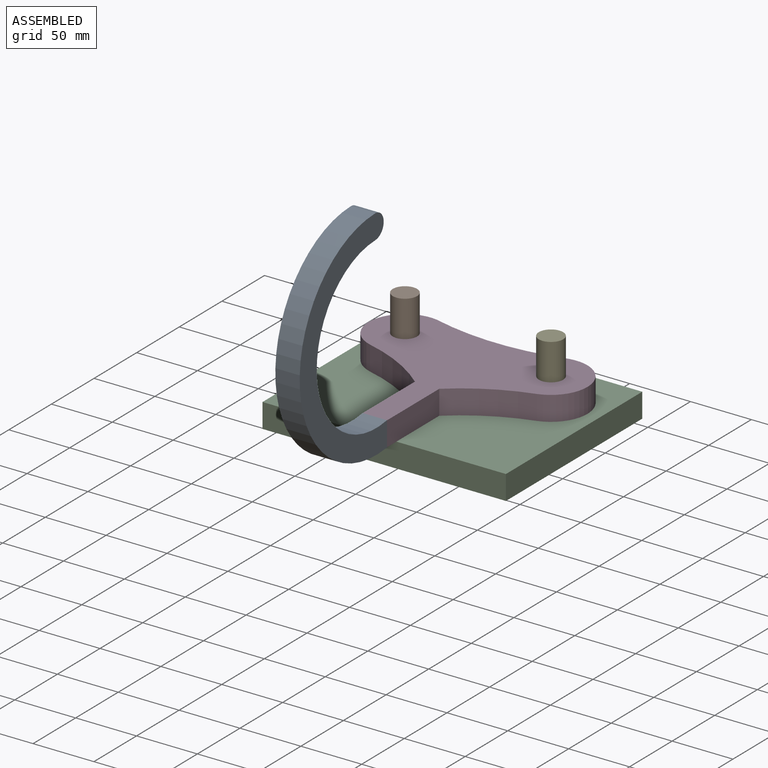
[diagram: assembled view]
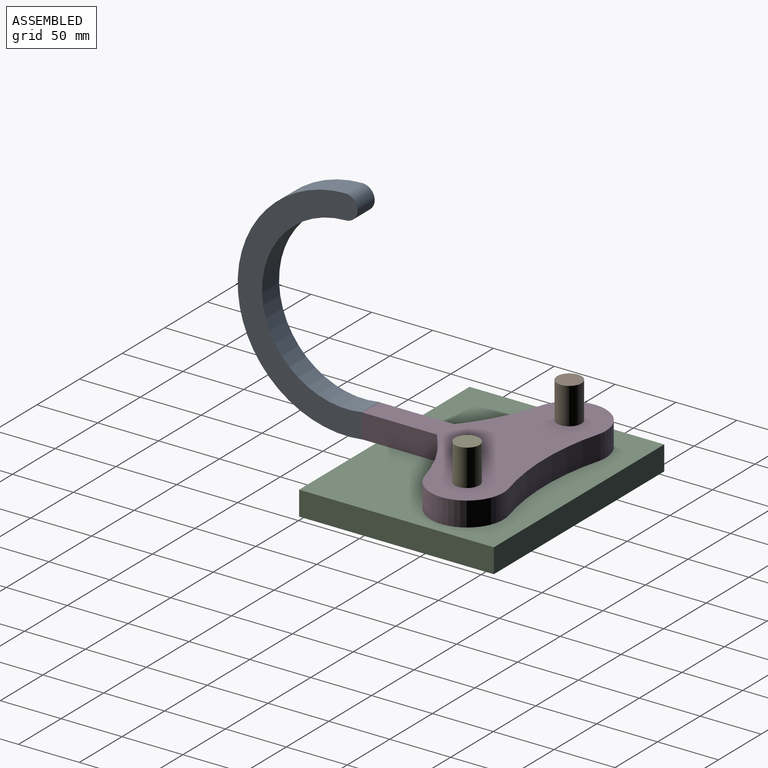
[diagram: assembled view, second angle]
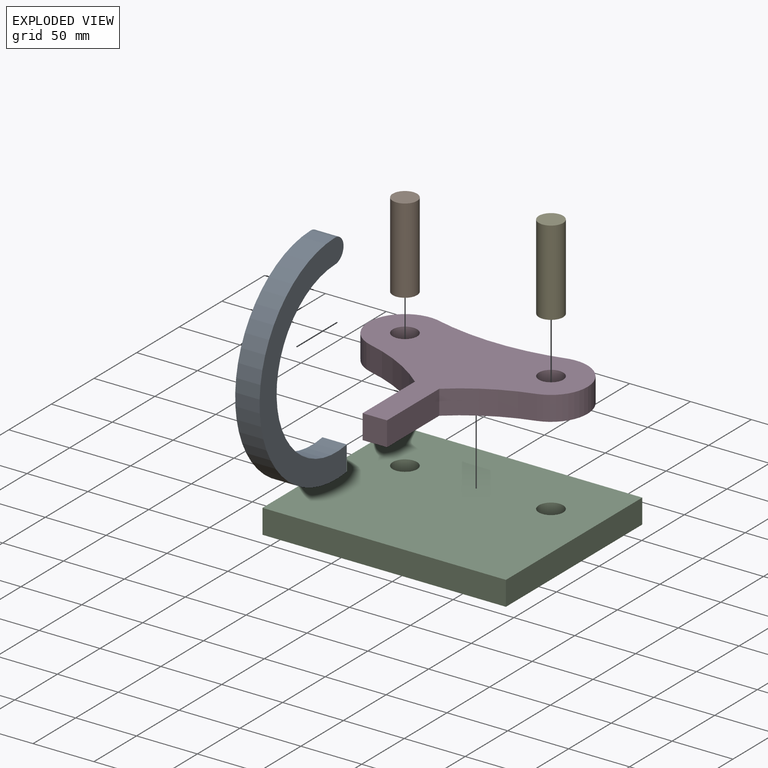
[diagram: exploded view]
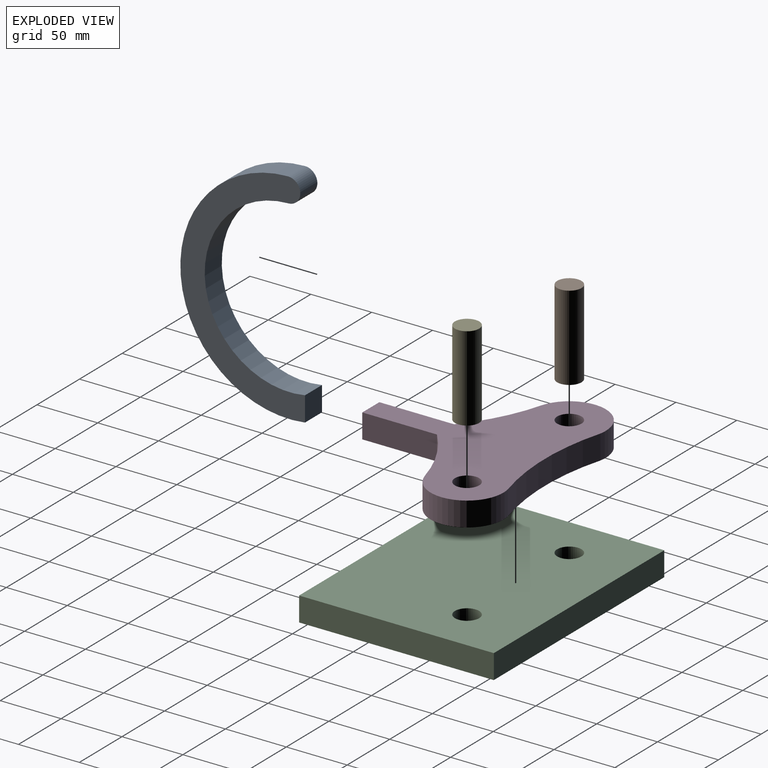
[diagram: exploded view, second angle]
ASSEMBLY  parts=5 mates=4
PART A: 6 faces, bbox 180x102.4x20 mm
  f0: plane 20.25x20mm, normal (0,1,0), area 405mm2, adj f1,f3,f4,f5
  f1: cylinder r=90mm len=179.99mm, axis (0,0,-1), area 5871.3mm2, adj f0,f2,f4,f5
  f2: cylinder r=10mm len=20mm, axis (0,0,-1), area 628.3mm2, adj f1,f3,f4,f5
  f3: cylinder r=70mm len=139.99mm, axis (0,0,-1), area 4622.3mm2, adj f0,f2,f4,f5
  f4: plane 179.99x102.38mm, normal (0,0,1), area 5403.8mm2, adj f0,f1,f2,f3
  f5: plane 179.99x102.38mm, normal (0,0,-1), area 5403.8mm2, adj f0,f1,f2,f3
PART B: 3 faces, bbox 20x20x70 mm
  f0: cylinder r=10mm len=70mm, axis (0,0,-1), area 4398.2mm2, adj f1,f2
  f1: plane 20x20mm, normal (0,0,1), area 314.2mm2, adj f0
  f2: plane 20x20mm, normal (0,0,-1), area 314.2mm2, adj f0
PART C: 8 faces, bbox 160x200x20 mm
  f0: plane 160x20mm, normal (0,1,0), area 3200mm2, adj f1,f3,f4,f5
  f1: plane 200x20mm, normal (-1,0,0), area 4000mm2, adj f0,f2,f4,f5
  f2: plane 160x20mm, normal (0,-1,0), area 3200mm2, adj f1,f3,f4,f5
  f3: plane 200x20mm, normal (1,0,0), area 4000mm2, adj f0,f2,f4,f5
  f4: plane 200x160mm, normal (0,0,1), area 31371.7mm2, adj f0,f1,f2,f3,f6,f7
  f5: plane 200x160mm, normal (0,0,-1), area 31371.7mm2, adj f0,f1,f2,f3,f6,f7
  f6: cylinder r=10mm len=20mm, axis (0,0,-1), area 1256.6mm2, adj f4,f5
  f7: cylinder r=10mm len=20mm, axis (0,0,-1), area 1256.6mm2, adj f4,f5
PART D: 12 faces, bbox 180x151.1x20 mm
  f0: cylinder r=150mm len=58.56mm, axis (0,0,-1), area 1335.5mm2, adj f1,f8,f10,f11
  f1: plane 61.39x20mm, normal (-1,0,0), area 1227.8mm2, adj f0,f2,f10,f11
  f2: plane 20x20mm, normal (0,-1,0), area 400mm2, adj f1,f3,f10,f11
  f3: plane 61.39x20mm, normal (1,0,0), area 1227.8mm2, adj f2,f4,f10,f11
  f4: cylinder r=150mm len=58.56mm, axis (0,0,-1), area 1335.5mm2, adj f3,f5,f10,f11
  f5: cylinder r=30mm len=58.75mm, axis (0,0,-1), area 1824.3mm2, adj f4,f6,f10,f11
  f6: cylinder r=200mm len=108.79mm, axis (0,0,-1), area 2203.5mm2, adj f5,f8,f10,f11
  f7: cylinder r=10mm len=20mm, axis (0,0,-1), area 1256.6mm2, adj f10,f11
  f8: cylinder r=30mm len=58.75mm, axis (0,0,-1), area 1824.3mm2, adj f0,f6,f10,f11
  f9: cylinder r=10mm len=20mm, axis (0,0,-1), area 1256.6mm2, adj f10,f11
  f10: plane 180x151.08mm, normal (0,0,1), area 11957.8mm2, adj f0,f1,f2,f3,f4,f5,f6,f7
  f11: plane 180x151.08mm, normal (0,0,-1), area 11957.8mm2, adj f0,f1,f2,f3,f4,f5,f6,f7
PART E: same geometry as B
PLACE A rot(axis=(0,-1,0),90deg) t=(-96.97,-349.32,156.59)mm
PLACE B t=(-126.22,-163.82,28.29)mm
PLACE C rot(axis=(0,0,1),90deg) t=(-75.37,-114.61,28.29)mm
PLACE D t=(-134.73,-109.9,48.29)mm
PLACE E t=(-6.22,-163.82,28.29)mm
MATE slider B.f0 <-> C.f6  axis (0,0,-1) through (-166.97,-139.37,28.29)mm
MATE revolute D.f8 <-> C.f6  axis (0,0,-1) through (-166.97,-139.37,48.29)mm
MATE slider E.f0 <-> C.f7  axis (0,0,-1) through (-46.97,-139.37,28.29)mm
MATE fastened A.f0 <-> D.f2  axis (0,1,0) through (-106.97,-260.46,58.29)mm
